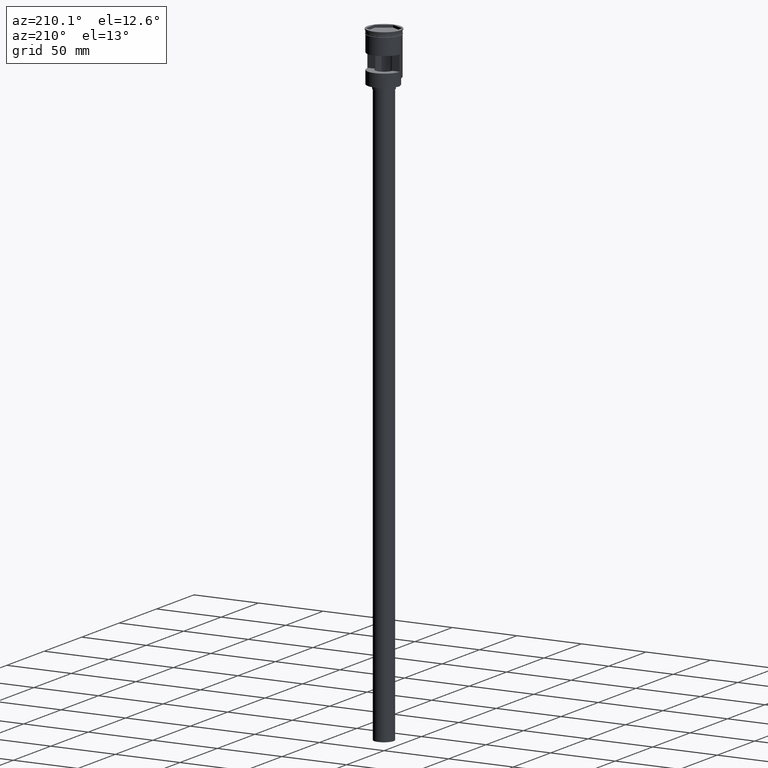
[diagram: clean part render]
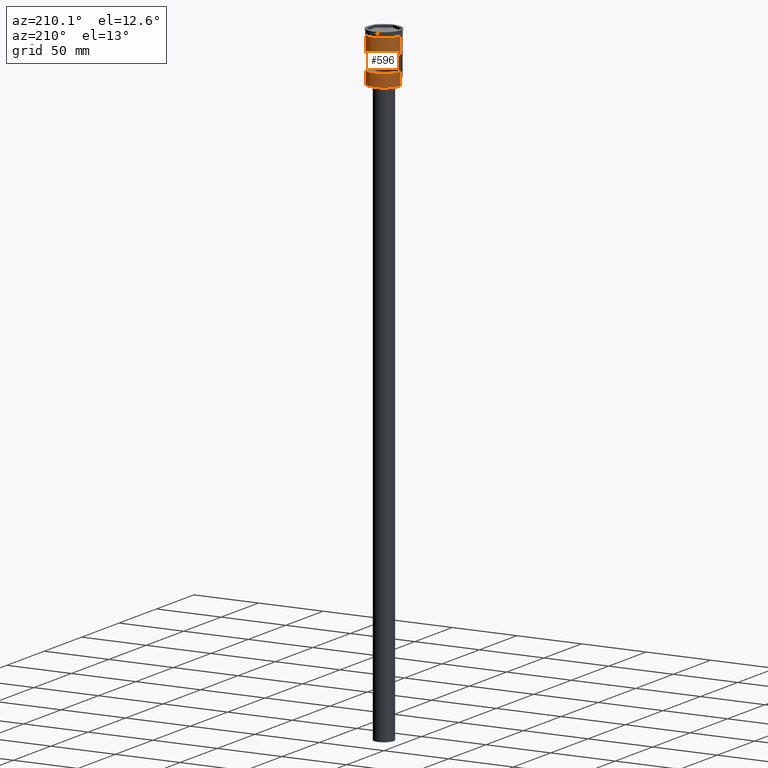
[diagram: same view with one face highlighted and labeled with its STEP entity id]
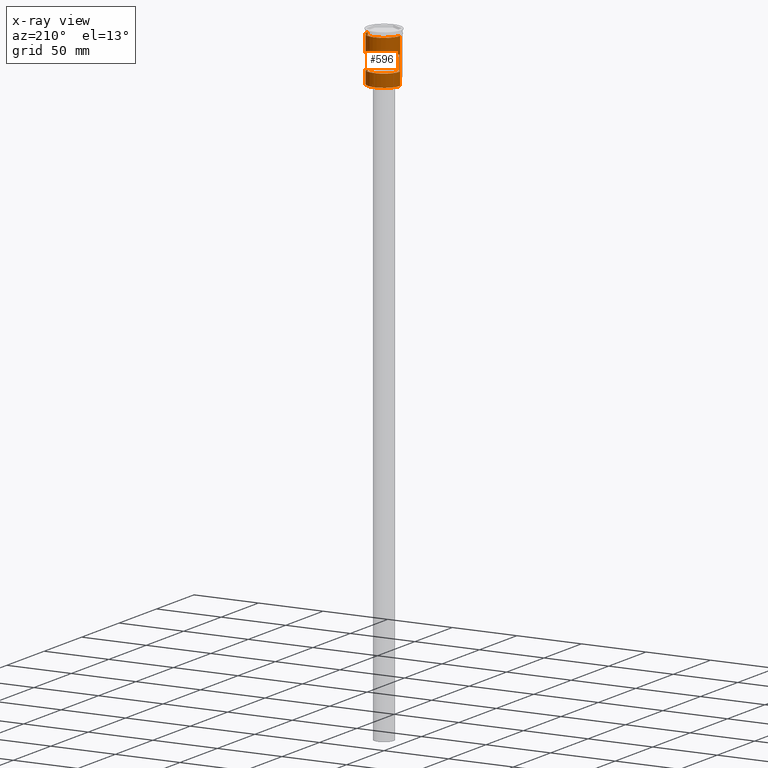
[diagram: x-ray of the same camera — body ghosted, the highlighted face saturated]
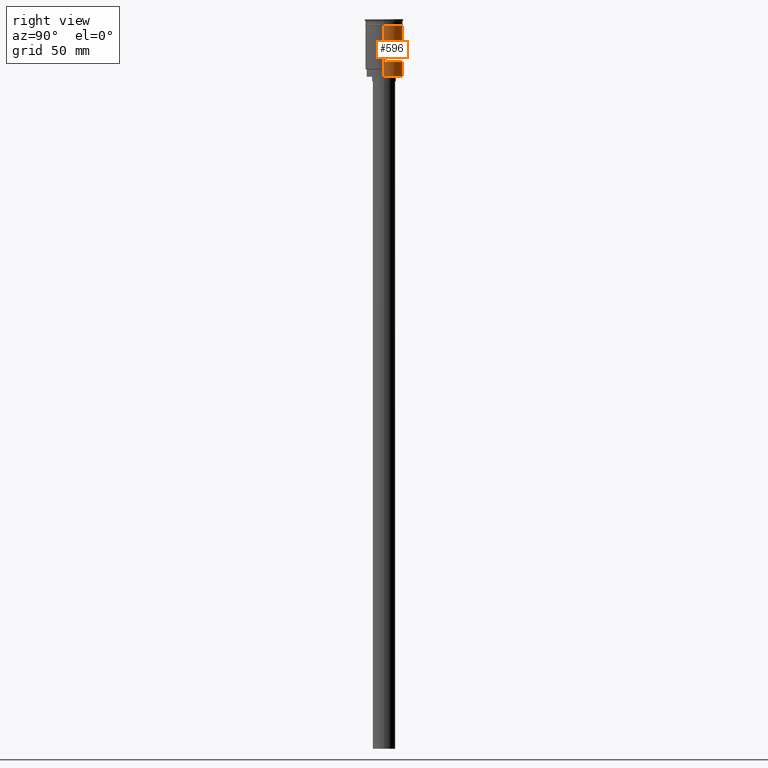
[diagram: same view with one face highlighted and labeled with its STEP entity id]
A machine part, auxiliary view. The second image highlights one B-rep face of the part: STEP entity #596.
The next image is the same camera in x-ray: the body ghosted, the highlighted face saturated — about 0% of this face is hidden behind the body in this view.
A second angle (right view) of the same face is appended — the face is thin or edge-on in the first view.
In plain terms, the highlighted cylindrical surface (edge-blend (fillet) strip) has radius 12.5 mm, axis along (-0, -0, 1).
Its self-contained STEP definition (entity closure, byte-faithful):
#2 = CARTESIAN_POINT ( 'NONE',  ( 12.49999999999999645, 0.000000000000000000, 0.000000000000000000 ) ) ;
#10 = LINE ( 'NONE', #2, #1199 ) ;
#15 = CARTESIAN_POINT ( 'NONE',  ( 0.000000000000000000, 0.000000000000000000, -28.49999999999999645 ) ) ;
#25 = DIRECTION ( 'NONE',  ( -1.000000000000000000, 0.000000000000000000, 0.000000000000000000 ) ) ;
#39 = EDGE_CURVE ( 'NONE', #1305, #1346, #10, .T. ) ;
#58 = DIRECTION ( 'NONE',  ( 0.000000000000000000, 0.000000000000000000, -1.000000000000000000 ) ) ;
#66 = VECTOR ( 'NONE', #1019, 1000.000000000000000 ) ;
#86 = CARTESIAN_POINT ( 'NONE',  ( 0.000000000000000000, 0.000000000000000000, -38.30000000000007532 ) ) ;
#91 = AXIS2_PLACEMENT_3D ( 'NONE', #86, #1551, #1189 ) ;
#103 = ORIENTED_EDGE ( 'NONE', *, *, #1479, .F. ) ;
#131 = ORIENTED_EDGE ( 'NONE', *, *, #1599, .F. ) ;
#154 = VECTOR ( 'NONE', #58, 1000.000000000000000 ) ;
#167 = CARTESIAN_POINT ( 'NONE',  ( 12.49999999999999289, 1.530808498934190732E-15, -38.50000000000000000 ) ) ;
#172 = LINE ( 'NONE', #1285, #154 ) ;
#212 = EDGE_CURVE ( 'NONE', #1581, #220, #536, .T. ) ;
#220 = VERTEX_POINT ( 'NONE', #1130 ) ;
#270 = EDGE_CURVE ( 'NONE', #1232, #1581, #172, .T. ) ;
#296 = VERTEX_POINT ( 'NONE', #658 ) ;
#299 = VERTEX_POINT ( 'NONE', #1405 ) ;
#310 = CIRCLE ( 'NONE', #1431, 12.49999999999999822 ) ;
#313 = AXIS2_PLACEMENT_3D ( 'NONE', #796, #1302, #700 ) ;
#317 = ORIENTED_EDGE ( 'NONE', *, *, #1184, .F. ) ;
#323 = VERTEX_POINT ( 'NONE', #787 ) ;
#331 = VERTEX_POINT ( 'NONE', #417 ) ;
#400 = ORIENTED_EDGE ( 'NONE', *, *, #270, .F. ) ;
#404 = AXIS2_PLACEMENT_3D ( 'NONE', #15, #622, #25 ) ;
#417 = CARTESIAN_POINT ( 'NONE',  ( -12.49999999999999289, 0.000000000000000000, -33.30000000000005400 ) ) ;
#424 = ORIENTED_EDGE ( 'NONE', *, *, #39, .F. ) ;
#439 = VECTOR ( 'NONE', #863, 1000.000000000000000 ) ;
#454 = LINE ( 'NONE', #556, #538 ) ;
#470 = VECTOR ( 'NONE', #1004, 1000.000000000000000 ) ;
#534 = CARTESIAN_POINT ( 'NONE',  ( 12.48559169603106689, 0.6000000000000003109, -28.49999999999999645 ) ) ;
#536 = CIRCLE ( 'NONE', #404, 12.49999999999999645 ) ;
#538 = VECTOR ( 'NONE', #957, 1000.000000000000000 ) ;
#556 = CARTESIAN_POINT ( 'NONE',  ( -12.49999999999999289, 0.000000000000000000, -38.50000000000000000 ) ) ;
#596 = ADVANCED_FACE ( 'NONE', ( #655, #1015 ), #1165, .T. ) ;
#618 = LINE ( 'NONE', #877, #66 ) ;
#622 = DIRECTION ( 'NONE',  ( 0.000000000000000000, 0.000000000000000000, 1.000000000000000000 ) ) ;
#655 = FACE_BOUND ( 'NONE', #857, .T. ) ;
#657 = EDGE_CURVE ( 'NONE', #323, #331, #454, .T. ) ;
#658 = CARTESIAN_POINT ( 'NONE',  ( 12.49999999999999289, 1.530808498934190732E-15, -38.30000000000007532 ) ) ;
#686 = ORIENTED_EDGE ( 'NONE', *, *, #212, .F. ) ;
#697 = CIRCLE ( 'NONE', #91, 12.49999999999999645 ) ;
#700 = DIRECTION ( 'NONE',  ( 1.000000000000000000, 0.000000000000000000, 0.000000000000000000 ) ) ;
#746 = CARTESIAN_POINT ( 'NONE',  ( 0.000000000000000000, 0.000000000000000000, -3.999999999999996447 ) ) ;
#757 = CARTESIAN_POINT ( 'NONE',  ( 0.000000000000000000, 0.000000000000000000, 0.000000000000000000 ) ) ;
#787 = CARTESIAN_POINT ( 'NONE',  ( -12.49999999999999289, 0.000000000000000000, -38.30000000000007532 ) ) ;
#796 = CARTESIAN_POINT ( 'NONE',  ( 0.000000000000000000, 0.000000000000000000, -16.50000000000000000 ) ) ;
#847 = ORIENTED_EDGE ( 'NONE', *, *, #921, .F. ) ;
#857 = EDGE_LOOP ( 'NONE', ( #400, #131, #317, #686 ) ) ;
#863 = DIRECTION ( 'NONE',  ( -0.000000000000000000, -0.000000000000000000, 1.000000000000000000 ) ) ;
#877 = CARTESIAN_POINT ( 'NONE',  ( -12.49999999999999645, 1.530808498934191127E-15, 0.000000000000000000 ) ) ;
#921 = EDGE_CURVE ( 'NONE', #1346, #299, #310, .T. ) ;
#934 = AXIS2_PLACEMENT_3D ( 'NONE', #757, #1038, #1258 ) ;
#957 = DIRECTION ( 'NONE',  ( -0.000000000000000000, -0.000000000000000000, 1.000000000000000000 ) ) ;
#972 = CARTESIAN_POINT ( 'NONE',  ( -12.48559169603106689, 0.6000000000000003109, 0.000000000000000000 ) ) ;
#1004 = DIRECTION ( 'NONE',  ( -0.000000000000000000, -0.000000000000000000, 1.000000000000000000 ) ) ;
#1005 = EDGE_CURVE ( 'NONE', #296, #323, #697, .T. ) ;
#1014 = CIRCLE ( 'NONE', #313, 12.49999999999999645 ) ;
#1015 = FACE_OUTER_BOUND ( 'NONE', #1585, .T. ) ;
#1019 = DIRECTION ( 'NONE',  ( -0.000000000000000000, -0.000000000000000000, 1.000000000000000000 ) ) ;
#1034 = LINE ( 'NONE', #167, #470 ) ;
#1038 = DIRECTION ( 'NONE',  ( -0.000000000000000000, -0.000000000000000000, 1.000000000000000000 ) ) ;
#1109 = DIRECTION ( 'NONE',  ( 1.000000000000000000, 0.000000000000000000, 0.000000000000000000 ) ) ;
#1112 = LINE ( 'NONE', #972, #439 ) ;
#1130 = CARTESIAN_POINT ( 'NONE',  ( -12.48559169603106689, 0.6000000000000003109, -28.49999999999999645 ) ) ;
#1147 = CARTESIAN_POINT ( 'NONE',  ( -12.48559169603106689, 0.6000000000000003109, -16.50000000000000000 ) ) ;
#1154 = CARTESIAN_POINT ( 'NONE',  ( 12.48559169603106689, 0.6000000000000003109, -16.50000000000000000 ) ) ;
#1165 = CYLINDRICAL_SURFACE ( 'NONE', #934, 12.49999999999999645 ) ;
#1184 = EDGE_CURVE ( 'NONE', #220, #1539, #1112, .T. ) ;
#1189 = DIRECTION ( 'NONE',  ( -1.000000000000000000, 0.000000000000000000, 0.000000000000000000 ) ) ;
#1199 = VECTOR ( 'NONE', #1499, 1000.000000000000000 ) ;
#1210 = ORIENTED_EDGE ( 'NONE', *, *, #657, .T. ) ;
#1217 = CARTESIAN_POINT ( 'NONE',  ( 12.49999999999999822, 0.000000000000000000, -3.999999999999996447 ) ) ;
#1232 = VERTEX_POINT ( 'NONE', #1154 ) ;
#1258 = DIRECTION ( 'NONE',  ( 1.000000000000000000, 0.000000000000000000, 0.000000000000000000 ) ) ;
#1264 = EDGE_CURVE ( 'NONE', #331, #299, #618, .T. ) ;
#1285 = CARTESIAN_POINT ( 'NONE',  ( 12.48559169603106689, 0.6000000000000003109, 0.000000000000000000 ) ) ;
#1292 = ORIENTED_EDGE ( 'NONE', *, *, #1264, .T. ) ;
#1301 = ORIENTED_EDGE ( 'NONE', *, *, #1005, .T. ) ;
#1302 = DIRECTION ( 'NONE',  ( -0.000000000000000000, 0.000000000000000000, -1.000000000000000000 ) ) ;
#1305 = VERTEX_POINT ( 'NONE', #1493 ) ;
#1346 = VERTEX_POINT ( 'NONE', #1217 ) ;
#1372 = DIRECTION ( 'NONE',  ( -0.000000000000000000, -0.000000000000000000, 1.000000000000000000 ) ) ;
#1405 = CARTESIAN_POINT ( 'NONE',  ( -12.50000000000000000, 1.530808498934191521E-15, -3.999999999999996447 ) ) ;
#1431 = AXIS2_PLACEMENT_3D ( 'NONE', #746, #1372, #1109 ) ;
#1479 = EDGE_CURVE ( 'NONE', #296, #1305, #1034, .T. ) ;
#1493 = CARTESIAN_POINT ( 'NONE',  ( 12.49999999999999645, 1.530808498934191127E-15, -33.30000000000005400 ) ) ;
#1499 = DIRECTION ( 'NONE',  ( -0.000000000000000000, -0.000000000000000000, 1.000000000000000000 ) ) ;
#1539 = VERTEX_POINT ( 'NONE', #1147 ) ;
#1551 = DIRECTION ( 'NONE',  ( 0.000000000000000000, 0.000000000000000000, 1.000000000000000000 ) ) ;
#1581 = VERTEX_POINT ( 'NONE', #534 ) ;
#1585 = EDGE_LOOP ( 'NONE', ( #1210, #1292, #847, #424, #103, #1301 ) ) ;
#1599 = EDGE_CURVE ( 'NONE', #1539, #1232, #1014, .T. ) ;